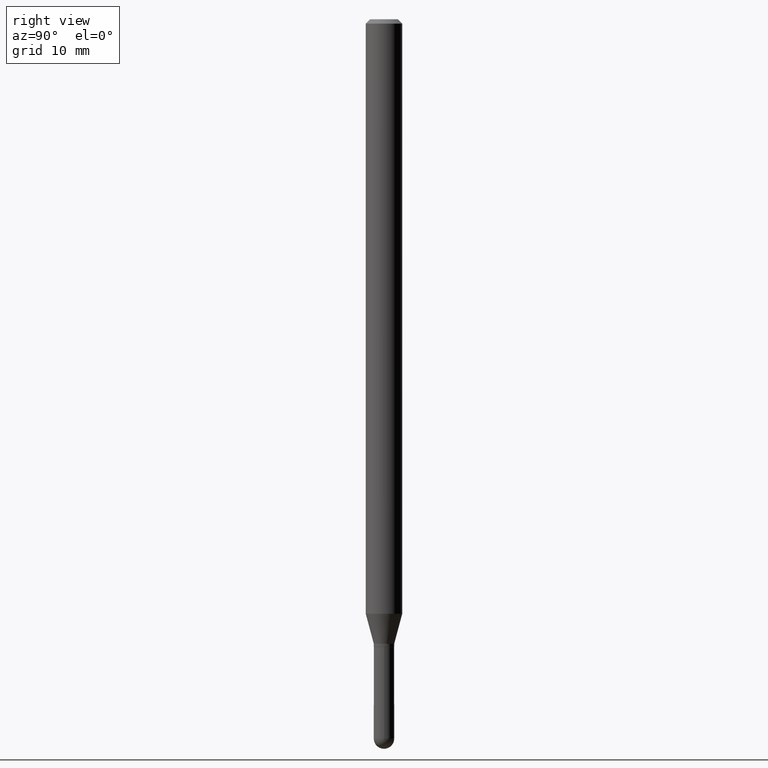
[diagram: clean part render]
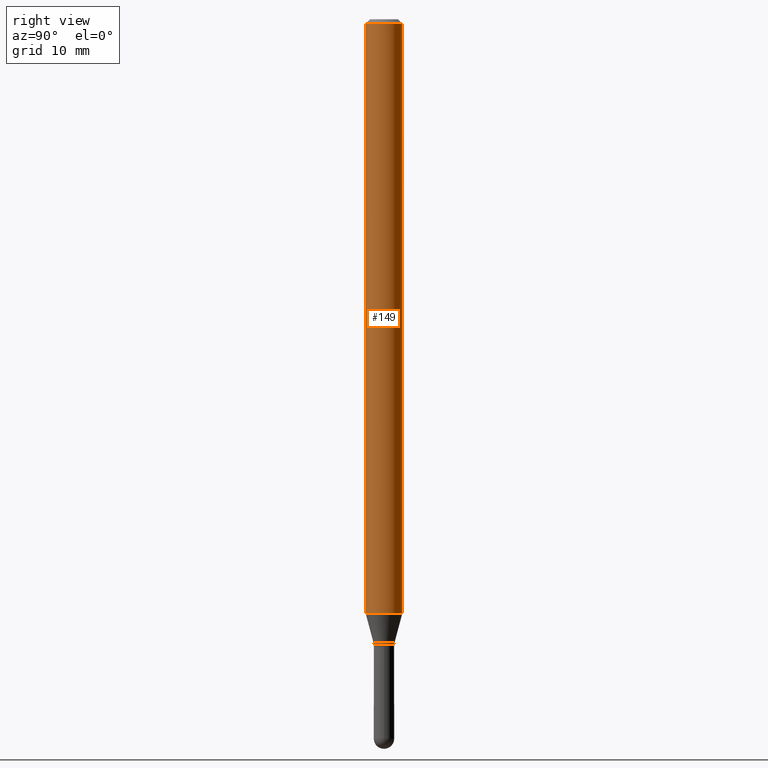
[diagram: same view with one face highlighted and labeled with its STEP entity id]
A machine part, right view. The second image highlights one B-rep face of the part: STEP entity #149.
In plain terms, the highlighted cylindrical surface (edge-blend (fillet) strip) has radius 1.5875 mm, axis along (-0, 0, 1).
Its self-contained STEP definition (entity closure, byte-faithful):
#3 = DIRECTION ( 'NONE',  ( -6.982962677686265922E-15, -1.000000000000000000, 3.483106191921935554E-15 ) ) ;
#5 = CARTESIAN_POINT ( 'NONE',  ( 0.000000000000000000, 0.000000000000000000, 0.000000000000000000 ) ) ;
#36 = ORIENTED_EDGE ( 'NONE', *, *, #101, .T. ) ;
#41 = LINE ( 'NONE', #233, #371 ) ;
#43 = DIRECTION ( 'NONE',  ( -2.445543390966067913E-29, 3.491374529191749825E-15, 1.000000000000000000 ) ) ;
#79 = CARTESIAN_POINT ( 'NONE',  ( 4.440892098500625669E-16, 0.06250000000000000000, -2.182109080744843641E-16 ) ) ;
#82 = LINE ( 'NONE', #79, #97 ) ;
#97 = VECTOR ( 'NONE', #150, 39.37007874015748143 ) ;
#101 = EDGE_CURVE ( 'NONE', #264, #273, #82, .T. ) ;
#114 = EDGE_CURVE ( 'NONE', #346, #493, #41, .T. ) ;
#116 = ORIENTED_EDGE ( 'NONE', *, *, #114, .F. ) ;
#149 = ADVANCED_FACE ( 'NONE', ( #348 ), #356, .T. ) ;
#150 = DIRECTION ( 'NONE',  ( -2.445543390966067632E-29, 3.491374529191749825E-15, 1.000000000000000000 ) ) ;
#159 = CARTESIAN_POINT ( 'NONE',  ( 3.668315086449104479E-31, -5.237061793787627745E-17, -0.01500000000000000812 ) ) ;
#162 = EDGE_CURVE ( 'NONE', #346, #264, #398, .T. ) ;
#169 = CARTESIAN_POINT ( 'NONE',  ( 4.982473321519396177E-29, -7.113216846362469892E-15, -2.037368602791856276 ) ) ;
#171 = AXIS2_PLACEMENT_3D ( 'NONE', #159, #43, #3 ) ;
#177 = EDGE_CURVE ( 'NONE', #493, #273, #187, .T. ) ;
#187 = CIRCLE ( 'NONE', #171, 0.06250000000000000000 ) ;
#190 = EDGE_LOOP ( 'NONE', ( #509, #36, #377, #116 ) ) ;
#233 = CARTESIAN_POINT ( 'NONE',  ( -4.364351673553916201E-16, -0.06250000000000000000, 2.182109080744843641E-16 ) ) ;
#264 = VERTEX_POINT ( 'NONE', #401 ) ;
#273 = VERTEX_POINT ( 'NONE', #413 ) ;
#282 = DIRECTION ( 'NONE',  ( -2.445543390966067913E-29, 3.491374529191749825E-15, 1.000000000000000000 ) ) ;
#289 = DIRECTION ( 'NONE',  ( -6.982962677686265922E-15, -1.000000000000000000, 3.491374529191749825E-15 ) ) ;
#311 = DIRECTION ( 'NONE',  ( -2.445543390966067632E-29, 3.491374529191749825E-15, 1.000000000000000000 ) ) ;
#313 = CARTESIAN_POINT ( 'NONE',  ( -4.364351673553420205E-16, -0.06250000000000714706, -2.037368602791855832 ) ) ;
#346 = VERTEX_POINT ( 'NONE', #313 ) ;
#348 = FACE_OUTER_BOUND ( 'NONE', #190, .T. ) ;
#356 = CYLINDRICAL_SURFACE ( 'NONE', #476, 0.06250000000000000000 ) ;
#362 = CARTESIAN_POINT ( 'NONE',  ( -4.364351673553912750E-16, -0.06250000000000005551, -0.01499999999999979128 ) ) ;
#371 = VECTOR ( 'NONE', #311, 39.37007874015748143 ) ;
#377 = ORIENTED_EDGE ( 'NONE', *, *, #177, .F. ) ;
#393 = DIRECTION ( 'NONE',  ( -2.445543390966067913E-29, 3.491374529191749825E-15, 1.000000000000000000 ) ) ;
#398 = CIRCLE ( 'NONE', #408, 0.06250000000000000000 ) ;
#401 = CARTESIAN_POINT ( 'NONE',  ( 4.440892098501121172E-16, 0.06249999999999285294, -2.037368602791856276 ) ) ;
#408 = AXIS2_PLACEMENT_3D ( 'NONE', #169, #282, #508 ) ;
#413 = CARTESIAN_POINT ( 'NONE',  ( 4.440892098501128074E-16, 0.06249999999999995837, -0.01500000000000022669 ) ) ;
#476 = AXIS2_PLACEMENT_3D ( 'NONE', #5, #393, #289 ) ;
#493 = VERTEX_POINT ( 'NONE', #362 ) ;
#508 = DIRECTION ( 'NONE',  ( -6.982962677686265922E-15, -1.000000000000000000, 4.370956789862821150E-15 ) ) ;
#509 = ORIENTED_EDGE ( 'NONE', *, *, #162, .T. ) ;